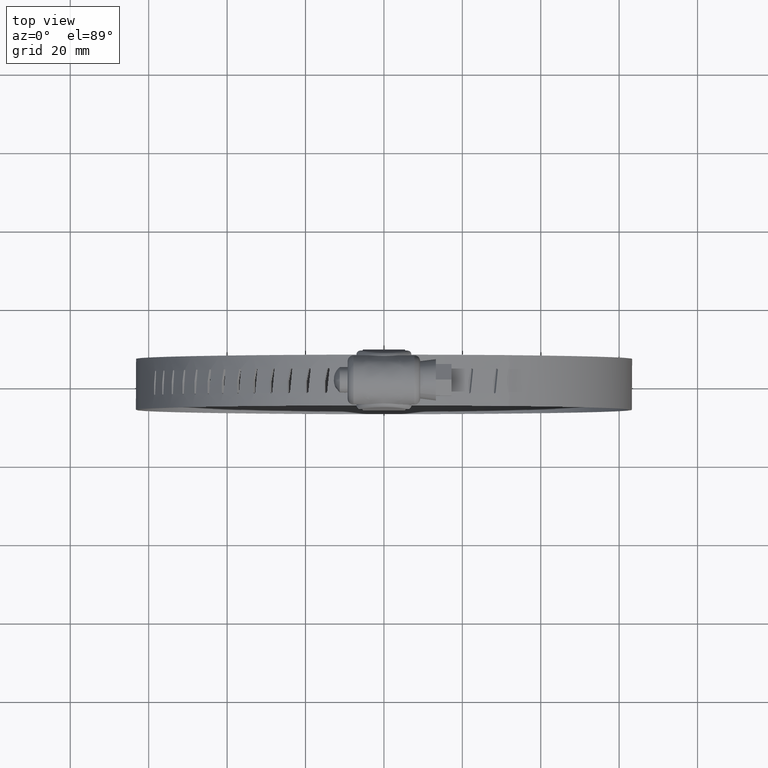
[diagram: clean part render]
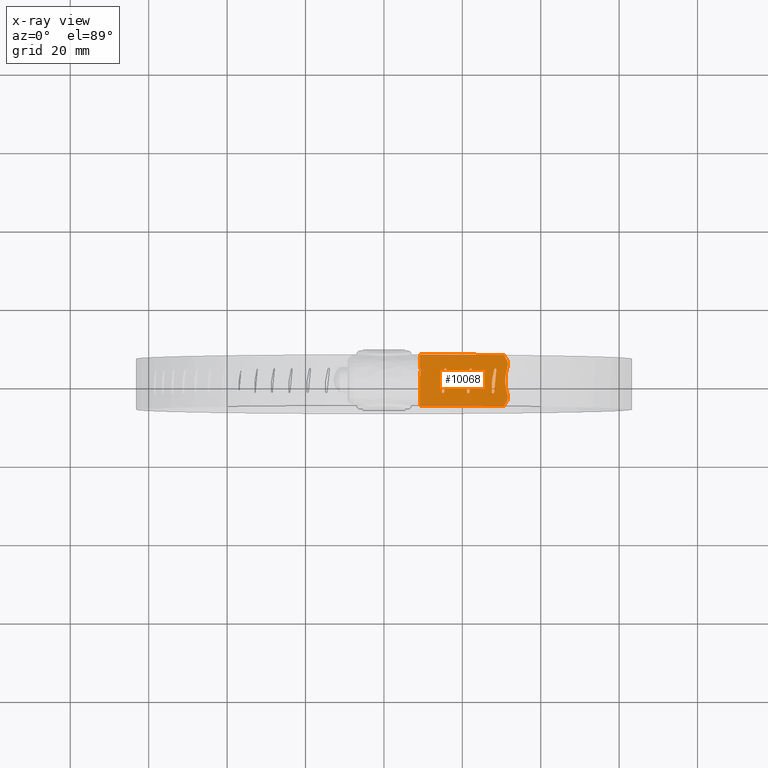
[diagram: x-ray — body ghosted, one internal face saturated and labeled with its STEP entity id]
A machine part, top view, then the same camera in x-ray: the body is ghosted and one INTERNAL B-rep face — a face not visible from any outside direction — is saturated and labeled: STEP entity #10068.
In plain terms, the highlighted face is a freeform B-spline surface patch.
Its self-contained STEP definition (entity closure, byte-faithful):
#8302=CARTESIAN_POINT('',(31.163931922086249,-2.061301204482520,4.120818992321780));
#8303=VERTEX_POINT('',#8302);
#8309=CARTESIAN_POINT('',(31.163931922086299,2.061301204482765,4.120818992321766));
#8310=VERTEX_POINT('',#8309);
#8311=CARTESIAN_POINT('',(31.163931922086299,2.061301204482765,4.120818992321766));
#8312=CARTESIAN_POINT('',(31.008029324079551,1.432037222637180,4.186796257101743));
#8313=CARTESIAN_POINT('',(30.828905619248602,0.044943627365904,4.262600587838386));
#8314=CARTESIAN_POINT('',(30.987134555952700,-1.348168519559344,4.195638827186162));
#8315=CARTESIAN_POINT('',(31.163931922086249,-2.061301204482520,4.120818992321780));
#8316=B_SPLINE_CURVE_WITH_KNOTS('',3,(#8311,#8312,#8313,#8314,#8315),.UNSPECIFIED.,.F.,.U.,(4,1,4),(0.000000036046635,1.954900952052746,4.170410556730273),.UNSPECIFIED.);
#8317=EDGE_CURVE('',#8310,#8303,#8316,.T.);
#8353=CARTESIAN_POINT('',(31.564073615469798,3.681800700683270,3.949551497983205));
#8354=VERTEX_POINT('',#8353);
#8360=CARTESIAN_POINT('',(31.362831377277740,5.226117512658850,4.035991048248590));
#8361=VERTEX_POINT('',#8360);
#8362=CARTESIAN_POINT('',(31.362831377277740,5.226117512658850,4.035991048248590));
#8363=CARTESIAN_POINT('',(31.474099704786681,5.026184522315393,3.988119469247934));
#8364=CARTESIAN_POINT('',(31.653136082775259,4.519719766581775,3.911113854809138));
#8365=CARTESIAN_POINT('',(31.636105104460519,3.972007233500124,3.918510616973161));
#8366=CARTESIAN_POINT('',(31.564073615469798,3.681800700683270,3.949551497983205));
#8367=B_SPLINE_CURVE_WITH_KNOTS('',3,(#8362,#8363,#8364,#8365,#8366),.UNSPECIFIED.,.F.,.U.,(4,1,4),(0.000000126905248,0.701292290852557,1.602902825218771),.UNSPECIFIED.);
#8368=EDGE_CURVE('',#8361,#8354,#8367,.T.);
#8404=CARTESIAN_POINT('',(31.362831377277800,-5.226117512658880,4.035991048248560));
#8405=VERTEX_POINT('',#8404);
#8411=CARTESIAN_POINT('',(31.564073615469749,-3.681800700683030,3.949551497983220));
#8412=VERTEX_POINT('',#8411);
#8413=CARTESIAN_POINT('',(31.564073615469749,-3.681800700683030,3.949551497983220));
#8414=CARTESIAN_POINT('',(31.644401401512170,-4.004279626008358,3.915048040235240));
#8415=CARTESIAN_POINT('',(31.648222669633849,-4.555408950908276,3.913406521398947));
#8416=CARTESIAN_POINT('',(31.458161836927012,-5.054715861189941,3.995043605193548));
#8417=CARTESIAN_POINT('',(31.362831377277800,-5.226117512658880,4.035991048248560));
#8418=B_SPLINE_CURVE_WITH_KNOTS('',3,(#8413,#8414,#8415,#8416,#8417),.UNSPECIFIED.,.F.,.U.,(4,1,4),(0.000000126718989,1.001773829911550,1.602870844704061),.UNSPECIFIED.);
#8419=EDGE_CURVE('',#8412,#8405,#8418,.T.);
#8531=CARTESIAN_POINT('',(9.411609338581460,2.660775000000000,10.097535966482999));
#8532=VERTEX_POINT('',#8531);
#8561=CARTESIAN_POINT('',(9.148745876024730,3.021662697174370,10.132670126067319));
#8562=VERTEX_POINT('',#8561);
#8584=CARTESIAN_POINT('',(9.411609338581460,2.660775000000000,10.097535966482999));
#8585=CARTESIAN_POINT('',(9.422434249037076,2.712285237600026,10.096124643748579));
#8586=CARTESIAN_POINT('',(9.417374097973791,2.799235378248892,10.096843804546211));
#8587=CARTESIAN_POINT('',(9.359261801410128,2.912916167511923,10.104629201315459));
#8588=CARTESIAN_POINT('',(9.271612984411263,2.991562546657789,10.116321970605849));
#8589=CARTESIAN_POINT('',(9.190299631589630,3.017640763887095,10.127144462905710));
#8590=CARTESIAN_POINT('',(9.148745876024730,3.021662697174370,10.132670126067319));
#8591=B_SPLINE_CURVE_WITH_KNOTS('',3,(#8584,#8585,#8586,#8587,#8588,#8589,#8590),.UNSPECIFIED.,.F.,.U.,(4,1,1,1,4),(0.000002045064405,0.157969267602493,0.252730537816767,0.379094784192941,0.505459030569101),.UNSPECIFIED.);
#8592=EDGE_CURVE('',#8532,#8562,#8591,.T.);
#8602=CARTESIAN_POINT('',(9.148745876024730,0.165198432926839,10.132670126067319));
#8603=VERTEX_POINT('',#8602);
#8633=CARTESIAN_POINT('',(9.148745876024730,0.165198432926839,10.132670126067319));
#8634=CARTESIAN_POINT('',(9.411609338581460,2.660775000000000,10.097535966482999));
#8635=QUASI_UNIFORM_CURVE('',1,(#8633,#8634),.UNSPECIFIED.,.F.,.U.);
#8636=EDGE_CURVE('',#8603,#8532,#8635,.T.);
#8745=CARTESIAN_POINT('',(14.806783516939740,0.026072999999997,9.189315612870979));
#8746=VERTEX_POINT('',#8745);
#8763=CARTESIAN_POINT('',(14.774884099892960,-0.282941999999991,9.195746091416460));
#8764=VERTEX_POINT('',#8763);
#8770=CARTESIAN_POINT('',(14.806783516939740,0.026072999999997,9.189315612870979));
#8771=CARTESIAN_POINT('',(14.785557089259230,-0.075409595564626,9.193596267446818));
#8772=CARTESIAN_POINT('',(14.774851891157491,-0.179176478167358,9.195754285360899));
#8773=CARTESIAN_POINT('',(14.774884099892960,-0.282941999999991,9.195746091416460));
#8774=B_SPLINE_CURVE_WITH_KNOTS('',3,(#8770,#8771,#8772,#8773),.UNSPECIFIED.,.F.,.U.,(4,4),(4.848860E-009,0.311306214405496),.UNSPECIFIED.);
#8775=EDGE_CURVE('',#8746,#8764,#8774,.T.);
#8785=CARTESIAN_POINT('',(15.369033396247600,2.723240999999915,9.073875226838000));
#8786=VERTEX_POINT('',#8785);
#8800=CARTESIAN_POINT('',(15.369033396247600,2.723240999999915,9.073875226838000));
#8801=CARTESIAN_POINT('',(14.806783516939740,0.026072999999997,9.189315612870979));
#8802=QUASI_UNIFORM_CURVE('',1,(#8800,#8801),.UNSPECIFIED.,.F.,.U.);
#8803=EDGE_CURVE('',#8786,#8746,#8802,.T.);
#8826=CARTESIAN_POINT('',(15.955195524633799,2.660775000000000,8.949283812551430));
#8827=VERTEX_POINT('',#8826);
#8856=CARTESIAN_POINT('',(15.696218977331620,3.021629151411339,9.004865540506884));
#8857=VERTEX_POINT('',#8856);
#8858=CARTESIAN_POINT('',(15.696218977331620,3.021629151411339,9.004865540506884));
#8859=CARTESIAN_POINT('',(15.655324414942839,3.026075432313208,9.013564029537815));
#8860=CARTESIAN_POINT('',(15.561237196188181,3.016100020117079,9.033541519386814));
#8861=CARTESIAN_POINT('',(15.417957125718541,2.922058834156218,9.063826118752775));
#8862=CARTESIAN_POINT('',(15.369239102211081,2.796948789995348,9.073960495247269));
#8863=CARTESIAN_POINT('',(15.369033396247600,2.723240999999915,9.073875226838000));
#8864=B_SPLINE_CURVE_WITH_KNOTS('',3,(#8858,#8859,#8860,#8861,#8862,#8863),.UNSPECIFIED.,.F.,.U.,(4,1,1,4),(0.000001239114619,0.126216638086486,0.283954800632088,0.504862729159878),.UNSPECIFIED.);
#8865=EDGE_CURVE('',#8857,#8786,#8864,.T.);
#8867=CARTESIAN_POINT('',(15.955195524633799,2.660775000000000,8.949283812551430));
#8868=CARTESIAN_POINT('',(15.965449993395319,2.712211461140320,8.947196014039459));
#8869=CARTESIAN_POINT('',(15.959425025804780,2.809659492443263,8.948642235250926));
#8870=CARTESIAN_POINT('',(15.874780531990311,2.957838802065227,8.966860692203165));
#8871=CARTESIAN_POINT('',(15.767914538710590,3.014364210960858,8.989637486541856));
#8872=CARTESIAN_POINT('',(15.696218977331620,3.021629151411339,9.004865540506884));
#8873=B_SPLINE_CURVE_WITH_KNOTS('',3,(#8867,#8868,#8869,#8870,#8871,#8872),.UNSPECIFIED.,.F.,.U.,(4,1,1,4),(0.000001957198565,0.157498613748136,0.283443843890396,0.503954010799184),.UNSPECIFIED.);
#8874=EDGE_CURVE('',#8827,#8857,#8873,.T.);
#8884=CARTESIAN_POINT('',(15.369033396247699,-2.976759000000185,9.073875226838110));
#8885=VERTEX_POINT('',#8884);
#8899=CARTESIAN_POINT('',(15.369033396247699,-2.976759000000185,9.073875226838110));
#8900=CARTESIAN_POINT('',(15.955195524633799,2.660775000000000,8.949283812551430));
#8901=QUASI_UNIFORM_CURVE('',1,(#8899,#8900),.UNSPECIFIED.,.F.,.U.);
#8902=EDGE_CURVE('',#8885,#8827,#8901,.T.);
#8925=CARTESIAN_POINT('',(14.774884099892960,-2.976759000000185,9.195746091416460));
#8926=VERTEX_POINT('',#8925);
#8955=CARTESIAN_POINT('',(15.072092886786420,-3.276758994190999,9.135337932667856));
#8956=VERTEX_POINT('',#8955);
#8957=CARTESIAN_POINT('',(15.072092886786420,-3.276758994190999,9.135337932667856));
#8958=CARTESIAN_POINT('',(15.149587082297900,-3.277438310797783,9.119443701742322));
#8959=CARTESIAN_POINT('',(15.264342102542861,-3.227997672526000,9.095813911243338));
#8960=CARTESIAN_POINT('',(15.352574469837890,-3.094840509698447,9.077469603210441));
#8961=CARTESIAN_POINT('',(15.368662473307401,-3.016174832164888,9.074024194731553));
#8962=CARTESIAN_POINT('',(15.369033396247699,-2.976759000000185,9.073875226838110));
#8963=B_SPLINE_CURVE_WITH_KNOTS('',3,(#8957,#8958,#8959,#8960,#8961,#8962),.UNSPECIFIED.,.F.,.U.,(4,1,1,4),(0.000001300095499,0.236639572838864,0.354958744204438,0.473277914022967),.UNSPECIFIED.);
#8964=EDGE_CURVE('',#8956,#8885,#8963,.T.);
#8966=CARTESIAN_POINT('',(14.774884099892960,-2.976759000000185,9.195746091416460));
#8967=CARTESIAN_POINT('',(14.775283947287379,-3.016170762966247,9.195736952721292));
#8968=CARTESIAN_POINT('',(14.793428525369199,-3.104707514911971,9.192178887119464));
#8969=CARTESIAN_POINT('',(14.888981146232510,-3.234635588941362,9.172819570039520));
#8970=CARTESIAN_POINT('',(15.004413858412430,-3.277134654028832,9.149220819710685));
#8971=CARTESIAN_POINT('',(15.072092886786420,-3.276758994190999,9.135337932667856));
#8972=B_SPLINE_CURVE_WITH_KNOTS('',3,(#8966,#8967,#8968,#8969,#8970,#8971),.UNSPECIFIED.,.F.,.U.,(4,1,1,4),(0.000001216995153,0.118333150924567,0.266228864153110,0.473328887355686),.UNSPECIFIED.);
#8973=EDGE_CURVE('',#8926,#8956,#8972,.T.);
#8990=CARTESIAN_POINT('',(14.774884099892960,-0.282941999999991,9.195746091416460));
#8991=CARTESIAN_POINT('',(14.774884099892960,-2.976759000000185,9.195746091416460));
#8992=QUASI_UNIFORM_CURVE('',1,(#8990,#8991),.UNSPECIFIED.,.F.,.U.);
#8993=EDGE_CURVE('',#8764,#8926,#8992,.T.);
#9012=CARTESIAN_POINT('',(21.262480033882451,0.026072999999997,7.620562711858280));
#9013=VERTEX_POINT('',#9012);
#9030=CARTESIAN_POINT('',(21.231183481624299,-0.282941999999991,7.629476166800210));
#9031=VERTEX_POINT('',#9030);
#9037=CARTESIAN_POINT('',(21.262480033882451,0.026072999999997,7.620562711858280));
#9038=CARTESIAN_POINT('',(21.241653229264450,-0.075404654789313,7.626496052116436));
#9039=CARTESIAN_POINT('',(21.231152409012552,-0.179178620661426,7.629486750254985));
#9040=CARTESIAN_POINT('',(21.231183481624299,-0.282941999999991,7.629476166800210));
#9041=B_SPLINE_CURVE_WITH_KNOTS('',3,(#9037,#9038,#9039,#9040),.UNSPECIFIED.,.F.,.U.,(4,4),(4.848866E-009,0.311306214405497),.UNSPECIFIED.);
#9042=EDGE_CURVE('',#9013,#9031,#9041,.T.);
#9052=CARTESIAN_POINT('',(21.813939336155350,2.723240999999915,7.461364572905690));
#9053=VERTEX_POINT('',#9052);
#9067=CARTESIAN_POINT('',(21.813939336155350,2.723240999999915,7.461364572905690));
#9068=CARTESIAN_POINT('',(21.262480033882451,0.026072999999997,7.620562711858280));
#9069=QUASI_UNIFORM_CURVE('',1,(#9067,#9068),.UNSPECIFIED.,.F.,.U.);
#9070=EDGE_CURVE('',#9053,#9013,#9069,.T.);
#9093=CARTESIAN_POINT('',(22.388519192620901,2.660775000000000,7.291167481825750));
#9094=VERTEX_POINT('',#9093);
#9123=CARTESIAN_POINT('',(22.134701875699061,3.021629151411338,7.366896935579584));
#9124=VERTEX_POINT('',#9123);
#9125=CARTESIAN_POINT('',(22.134701875699061,3.021629151411338,7.366896935579584));
#9126=CARTESIAN_POINT('',(22.094615820438872,3.026066233073627,7.378777153731991));
#9127=CARTESIAN_POINT('',(22.002372354383748,3.016133458877070,7.406079192165562));
#9128=CARTESIAN_POINT('',(21.861980024868672,2.922001834660955,7.447491179228851));
#9129=CARTESIAN_POINT('',(21.814109977079539,2.796983513736848,7.461445679762648));
#9130=CARTESIAN_POINT('',(21.813939336155350,2.723240999999915,7.461364572905690));
#9131=B_SPLINE_CURVE_WITH_KNOTS('',3,(#9125,#9126,#9127,#9128,#9129,#9130),.UNSPECIFIED.,.F.,.U.,(4,1,1,4),(0.000001239114845,0.126216638086492,0.283954800631884,0.504862729159416),.UNSPECIFIED.);
#9132=EDGE_CURVE('',#9124,#9053,#9131,.T.);
#9134=CARTESIAN_POINT('',(22.388519192620901,2.660775000000000,7.291167481825750));
#9135=CARTESIAN_POINT('',(22.400743767591401,2.722528931949328,7.287658953087474));
#9136=CARTESIAN_POINT('',(22.389575751556212,2.820841188010496,7.291135676227417));
#9137=CARTESIAN_POINT('',(22.300155285124649,2.962979899979615,7.317841678861909));
#9138=CARTESIAN_POINT('',(22.205008297069600,3.014361728489003,7.346082765636499));
#9139=CARTESIAN_POINT('',(22.134701875699061,3.021629151411338,7.366896935579584));
#9140=B_SPLINE_CURVE_WITH_KNOTS('',3,(#9134,#9135,#9136,#9137,#9138,#9139),.UNSPECIFIED.,.F.,.U.,(4,1,1,4),(0.000001957198589,0.189011976087005,0.283443843890526,0.503954010799395),.UNSPECIFIED.);
#9141=EDGE_CURVE('',#9094,#9124,#9140,.T.);
#9151=CARTESIAN_POINT('',(21.813939336155400,-2.976759000000185,7.461364572905800));
#9152=VERTEX_POINT('',#9151);
#9166=CARTESIAN_POINT('',(21.813939336155400,-2.976759000000185,7.461364572905800));
#9167=CARTESIAN_POINT('',(22.388519192620901,2.660775000000000,7.291167481825750));
#9168=QUASI_UNIFORM_CURVE('',1,(#9166,#9167),.UNSPECIFIED.,.F.,.U.);
#9169=EDGE_CURVE('',#9152,#9094,#9168,.T.);
#9192=CARTESIAN_POINT('',(21.231183481624299,-2.976759000000185,7.629476166800210));
#9193=VERTEX_POINT('',#9192);
#9222=CARTESIAN_POINT('',(21.522736503505939,-3.276758994190999,7.545935493582783));
#9223=VERTEX_POINT('',#9222);
#9224=CARTESIAN_POINT('',(21.522736503505939,-3.276758994190999,7.545935493582783));
#9225=CARTESIAN_POINT('',(21.589108506380182,-3.277125261801735,7.526789383667051));
#9226=CARTESIAN_POINT('',(21.702277745000949,-3.234610631991371,7.494062502303380));
#9227=CARTESIAN_POINT('',(21.795861596729210,-3.104696466313358,7.466820783547848));
#9228=CARTESIAN_POINT('',(21.813581819810629,-3.016165739004914,7.461542000761856));
#9229=CARTESIAN_POINT('',(21.813939336155400,-2.976759000000185,7.461364572905800));
#9230=B_SPLINE_CURVE_WITH_KNOTS('',3,(#9224,#9225,#9226,#9227,#9228,#9229),.UNSPECIFIED.,.F.,.U.,(4,1,1,4),(0.000001300095544,0.207078979428101,0.354958744204647,0.473277914023248),.UNSPECIFIED.);
#9231=EDGE_CURVE('',#9223,#9152,#9230,.T.);
#9233=CARTESIAN_POINT('',(21.231183481624299,-2.976759000000185,7.629476166800210));
#9234=CARTESIAN_POINT('',(21.231577617093620,-3.045851950543270,7.629492727185246));
#9235=CARTESIAN_POINT('',(21.273714084862611,-3.163182229409300,7.617558537635408));
#9236=CARTESIAN_POINT('',(21.399595205998651,-3.259285273261522,7.581425946949637));
#9237=CARTESIAN_POINT('',(21.484863062781852,-3.276792784680363,7.556861162797577));
#9238=CARTESIAN_POINT('',(21.522736503505939,-3.276758994190999,7.545935493582783));
#9239=B_SPLINE_CURVE_WITH_KNOTS('',3,(#9233,#9234,#9235,#9236,#9237,#9238),.UNSPECIFIED.,.F.,.U.,(4,1,1,4),(0.000001216995032,0.207101290976576,0.354996986104962,0.473328887355432),.UNSPECIFIED.);
#9240=EDGE_CURVE('',#9193,#9223,#9239,.T.);
#9257=CARTESIAN_POINT('',(21.231183481624299,-0.282941999999991,7.629476166800210));
#9258=CARTESIAN_POINT('',(21.231183481624299,-2.976759000000185,7.629476166800210));
#9259=QUASI_UNIFORM_CURVE('',1,(#9257,#9258),.UNSPECIFIED.,.F.,.U.);
#9260=EDGE_CURVE('',#9031,#9193,#9259,.T.);
#9270=CARTESIAN_POINT('',(30.653312246935752,-6.500000000000000,4.335849637519985));
#9271=VERTEX_POINT('',#9270);
#9272=CARTESIAN_POINT('',(30.653312246935752,-6.500000000000000,4.335849637519985));
#9273=CARTESIAN_POINT('',(31.362831377277800,-5.226117512658880,4.035991048248560));
#9274=QUASI_UNIFORM_CURVE('',1,(#9272,#9273),.UNSPECIFIED.,.F.,.U.);
#9275=EDGE_CURVE('',#9271,#8405,#9274,.T.);
#9306=CARTESIAN_POINT('',(30.653312246935752,6.500000000000000,4.335849637519985));
#9307=VERTEX_POINT('',#9306);
#9308=CARTESIAN_POINT('',(31.362831377277740,5.226117512658850,4.035991048248590));
#9309=CARTESIAN_POINT('',(30.653312246935752,6.500000000000000,4.335849637519985));
#9310=QUASI_UNIFORM_CURVE('',1,(#9308,#9309),.UNSPECIFIED.,.F.,.U.);
#9311=EDGE_CURVE('',#8361,#9307,#9310,.T.);
#9326=CARTESIAN_POINT('',(31.564073615469749,-3.681800700683030,3.949551497983220));
#9327=CARTESIAN_POINT('',(31.163931922086249,-2.061301204482520,4.120818992321780));
#9328=QUASI_UNIFORM_CURVE('',1,(#9326,#9327),.UNSPECIFIED.,.F.,.U.);
#9329=EDGE_CURVE('',#8412,#8303,#9328,.T.);
#9352=CARTESIAN_POINT('',(31.163931922086299,2.061301204482765,4.120818992321766));
#9353=CARTESIAN_POINT('',(31.564073615469798,3.681800700683270,3.949551497983205));
#9354=QUASI_UNIFORM_CURVE('',1,(#9352,#9353),.UNSPECIFIED.,.F.,.U.);
#9355=EDGE_CURVE('',#8310,#8354,#9354,.T.);
#9375=CARTESIAN_POINT('',(27.575192858909350,0.026072999999997,5.550137641481660));
#9376=VERTEX_POINT('',#9375);
#9393=CARTESIAN_POINT('',(27.544692125091750,-0.282941999999991,5.561479118406350));
#9394=VERTEX_POINT('',#9393);
#9400=CARTESIAN_POINT('',(27.575192858909350,0.026072999999997,5.550137641481660));
#9401=CARTESIAN_POINT('',(27.554897405685459,-0.075409595564636,5.557686138955258));
#9402=CARTESIAN_POINT('',(27.544661594714569,-0.179176478167361,5.561492250026007));
#9403=CARTESIAN_POINT('',(27.544692125091750,-0.282941999999991,5.561479118406350));
#9404=B_SPLINE_CURVE_WITH_KNOTS('',3,(#9400,#9401,#9402,#9403),.UNSPECIFIED.,.F.,.U.,(4,4),(4.848864E-009,0.311306214405490),.UNSPECIFIED.);
#9405=EDGE_CURVE('',#9376,#9394,#9404,.T.);
#9415=CARTESIAN_POINT('',(28.112461654169799,2.723240999999915,5.348163259074950));
#9416=VERTEX_POINT('',#9415);
#9430=CARTESIAN_POINT('',(28.112461654169799,2.723240999999915,5.348163259074950));
#9431=CARTESIAN_POINT('',(27.575192858909350,0.026072999999997,5.550137641481660));
#9432=QUASI_UNIFORM_CURVE('',1,(#9430,#9431),.UNSPECIFIED.,.F.,.U.);
#9433=EDGE_CURVE('',#9416,#9376,#9432,.T.);
#9456=CARTESIAN_POINT('',(28.671916762832598,2.660775000000000,5.133409812864609));
#9457=VERTEX_POINT('',#9456);
#9486=CARTESIAN_POINT('',(28.424823544453108,3.021629151411339,5.228820095151646));
#9487=VERTEX_POINT('',#9486);
#9488=CARTESIAN_POINT('',(28.424823544453108,3.021629151411339,5.228820095151646));
#9489=CARTESIAN_POINT('',(28.366217537470821,3.028480860566506,5.251326722589676));
#9490=CARTESIAN_POINT('',(28.275669193873060,3.007683295051538,5.286042713314026));
#9491=CARTESIAN_POINT('',(28.151504958896211,2.900992474682082,5.333503620277950));
#9492=CARTESIAN_POINT('',(28.112638155835430,2.797044829207519,5.348230831089024));
#9493=CARTESIAN_POINT('',(28.112461654169799,2.723240999999915,5.348163259074950));
#9494=B_SPLINE_CURVE_WITH_KNOTS('',3,(#9488,#9489,#9490,#9491,#9492,#9493),.UNSPECIFIED.,.F.,.U.,(4,1,1,4),(0.000001239114752,0.189352695340417,0.283954800631935,0.504862729159522),.UNSPECIFIED.);
#9495=EDGE_CURVE('',#9487,#9416,#9494,.T.);
#9497=CARTESIAN_POINT('',(28.671916762832598,2.660775000000000,5.133409812864609));
#9498=CARTESIAN_POINT('',(28.681713277891340,2.712203988879148,5.129745508871994));
#9499=CARTESIAN_POINT('',(28.676002378676909,2.809664608588071,5.132111224353920));
#9500=CARTESIAN_POINT('',(28.595249200959671,2.957872859672777,5.163347054099747));
#9501=CARTESIAN_POINT('',(28.493236503316680,3.014318591978693,5.202570579939630));
#9502=CARTESIAN_POINT('',(28.424823544453108,3.021629151411339,5.228820095151646));
#9503=B_SPLINE_CURVE_WITH_KNOTS('',3,(#9497,#9498,#9499,#9500,#9501,#9502),.UNSPECIFIED.,.F.,.U.,(4,1,1,4),(0.000001957198571,0.157498613748197,0.283443843890512,0.503954010799378),.UNSPECIFIED.);
#9504=EDGE_CURVE('',#9457,#9487,#9503,.T.);
#9514=CARTESIAN_POINT('',(28.112461654169898,-2.976759000000185,5.348163259075061));
#9515=VERTEX_POINT('',#9514);
#9529=CARTESIAN_POINT('',(28.112461654169898,-2.976759000000185,5.348163259075061));
#9530=CARTESIAN_POINT('',(28.671916762832598,2.660775000000000,5.133409812864609));
#9531=QUASI_UNIFORM_CURVE('',1,(#9529,#9530),.UNSPECIFIED.,.F.,.U.);
#9532=EDGE_CURVE('',#9515,#9457,#9531,.T.);
#9555=CARTESIAN_POINT('',(27.544692125091750,-2.976759000000185,5.561479118406350));
#9556=VERTEX_POINT('',#9555);
#9585=CARTESIAN_POINT('',(27.828791860630400,-3.276758994190999,5.455320986750770));
#9586=VERTEX_POINT('',#9585);
#9587=CARTESIAN_POINT('',(27.828791860630400,-3.276758994190999,5.455320986750770));
#9588=CARTESIAN_POINT('',(27.893457074299661,-3.277125261801789,5.431026410575049));
#9589=CARTESIAN_POINT('',(28.003709728408371,-3.234610631991466,5.389521259138189));
#9590=CARTESIAN_POINT('',(28.094867731734251,-3.104696466313442,5.355021013128787));
#9591=CARTESIAN_POINT('',(28.112119160757910,-3.016165739004939,5.348368190389371));
#9592=CARTESIAN_POINT('',(28.112461654169898,-2.976759000000185,5.348163259075061));
#9593=B_SPLINE_CURVE_WITH_KNOTS('',3,(#9587,#9588,#9589,#9590,#9591,#9592),.UNSPECIFIED.,.F.,.U.,(4,1,1,4),(0.000001300095661,0.207078979428272,0.354958744204868,0.473277914023484),.UNSPECIFIED.);
#9594=EDGE_CURVE('',#9586,#9515,#9593,.T.);
#9596=CARTESIAN_POINT('',(27.544692125091750,-2.976759000000185,5.561479118406350));
#9597=CARTESIAN_POINT('',(27.545085311785581,-3.045849892752027,5.561465088391176));
#9598=CARTESIAN_POINT('',(27.586161462498040,-3.163188939508689,5.546259491079088));
#9599=CARTESIAN_POINT('',(27.708807032987071,-3.259276385929684,5.500366458939737));
#9600=CARTESIAN_POINT('',(27.791903103649190,-3.276800904155119,5.469180481892630));
#9601=CARTESIAN_POINT('',(27.828791860630400,-3.276758994190999,5.455320986750770));
#9602=B_SPLINE_CURVE_WITH_KNOTS('',3,(#9596,#9597,#9598,#9599,#9600,#9601),.UNSPECIFIED.,.F.,.U.,(4,1,1,4),(0.000001216995194,0.207101290976484,0.354996986104728,0.473328887355105),.UNSPECIFIED.);
#9603=EDGE_CURVE('',#9556,#9586,#9602,.T.);
#9620=CARTESIAN_POINT('',(27.544692125091750,-0.282941999999991,5.561479118406350));
#9621=CARTESIAN_POINT('',(27.544692125091750,-2.976759000000185,5.561479118406350));
#9622=QUASI_UNIFORM_CURVE('',1,(#9620,#9621),.UNSPECIFIED.,.F.,.U.);
#9623=EDGE_CURVE('',#9394,#9556,#9622,.T.);
#9745=CARTESIAN_POINT('',(9.148745876024730,6.500000000000000,10.132670126067319));
#9746=VERTEX_POINT('',#9745);
#9754=CARTESIAN_POINT('',(9.148745876024730,6.500000000000000,10.132670126067319));
#9755=CARTESIAN_POINT('',(9.148745876024730,3.021662697174370,10.132670126067319));
#9756=QUASI_UNIFORM_CURVE('',1,(#9754,#9755),.UNSPECIFIED.,.F.,.U.);
#9757=EDGE_CURVE('',#9746,#8562,#9756,.T.);
#9863=CARTESIAN_POINT('',(9.148745876024730,-6.500000000000000,10.132670126067319));
#9864=VERTEX_POINT('',#9863);
#9872=CARTESIAN_POINT('',(30.653312246935752,-6.500000000000000,4.335849637519985));
#9873=CARTESIAN_POINT('',(27.432352662499341,-6.499999999999996,5.679962079849739));
#9874=CARTESIAN_POINT('',(20.383220465608460,-6.499999999999996,8.121292176493958));
#9875=CARTESIAN_POINT('',(13.070236897118180,-6.500000000000010,9.614984553882808));
#9876=CARTESIAN_POINT('',(9.148745876024730,-6.500000000000000,10.132670126067319));
#9877=B_SPLINE_CURVE_WITH_KNOTS('',3,(#9872,#9873,#9874,#9875,#9876),.UNSPECIFIED.,.F.,.U.,(4,1,4),(2.574847E-009,10.470475704856030,22.336993923316928),.UNSPECIFIED.);
#9878=EDGE_CURVE('',#9271,#9864,#9877,.T.);
#9925=CARTESIAN_POINT('',(30.653312246935752,6.500000000000000,4.335849637519985));
#9926=CARTESIAN_POINT('',(27.432352662499341,6.499999999999996,5.679962079849739));
#9927=CARTESIAN_POINT('',(20.383220465608460,6.499999999999996,8.121292176493958));
#9928=CARTESIAN_POINT('',(13.070236897118180,6.500000000000010,9.614984553882808));
#9929=CARTESIAN_POINT('',(9.148745876024730,6.500000000000000,10.132670126067319));
#9930=B_SPLINE_CURVE_WITH_KNOTS('',3,(#9925,#9926,#9927,#9928,#9929),.UNSPECIFIED.,.F.,.U.,(4,1,4),(2.574847E-009,10.470475704856030,22.336993923316928),.UNSPECIFIED.);
#9931=EDGE_CURVE('',#9307,#9746,#9930,.T.);
#10005=CARTESIAN_POINT('',(32.690073873375418,-6.824999999999999,3.454437143672131));
#10006=CARTESIAN_POINT('',(32.690073873375418,6.833125000000003,3.454437143672131));
#10007=CARTESIAN_POINT('',(20.863347912909489,-6.825000000000000,8.757695304400940));
#10008=CARTESIAN_POINT('',(20.863347912909489,6.833125000000002,8.757695304400940));
#10009=CARTESIAN_POINT('',(7.991421754359146,-6.825000000000000,10.277402852623029));
#10010=CARTESIAN_POINT('',(7.991421754359146,6.833125000000002,10.277402852623029));
#10018=(BOUNDED_SURFACE()B_SPLINE_SURFACE(1,2,((#10005,#10007,#10009),(#10006,#10008,#10010)),.UNSPECIFIED.,.F.,.F.,.U.)B_SPLINE_SURFACE_WITH_KNOTS((2,2),(3,3),(0.0,13.658125000000000),(0.0,25.772309335231629),.UNSPECIFIED.)GEOMETRIC_REPRESENTATION_ITEM()RATIONAL_B_SPLINE_SURFACE(((0.998595321233075,0.985220079589454,0.994834211813526),(0.998595321233075,0.985220079589454,0.994834211813526)))REPRESENTATION_ITEM('')SURFACE());
#10019=ORIENTED_EDGE('',*,*,#9329,.F.);
#10020=ORIENTED_EDGE('',*,*,#8419,.T.);
#10021=ORIENTED_EDGE('',*,*,#9275,.F.);
#10022=ORIENTED_EDGE('',*,*,#9878,.T.);
#10023=CARTESIAN_POINT('',(9.148745876024730,0.165198432926839,10.132670126067319));
#10024=CARTESIAN_POINT('',(9.148745876024730,-6.500000000000000,10.132670126067319));
#10025=QUASI_UNIFORM_CURVE('',1,(#10023,#10024),.UNSPECIFIED.,.F.,.U.);
#10026=EDGE_CURVE('',#8603,#9864,#10025,.T.);
#10027=ORIENTED_EDGE('',*,*,#10026,.F.);
#10028=ORIENTED_EDGE('',*,*,#8636,.T.);
#10029=ORIENTED_EDGE('',*,*,#8592,.T.);
#10030=ORIENTED_EDGE('',*,*,#9757,.F.);
#10031=ORIENTED_EDGE('',*,*,#9931,.F.);
#10032=ORIENTED_EDGE('',*,*,#9311,.F.);
#10033=ORIENTED_EDGE('',*,*,#8368,.T.);
#10034=ORIENTED_EDGE('',*,*,#9355,.F.);
#10035=ORIENTED_EDGE('',*,*,#8317,.T.);
#10036=EDGE_LOOP('',(#10019,#10020,#10021,#10022,#10027,#10028,#10029,#10030,#10031,#10032,#10033,#10034,#10035));
#10037=FACE_OUTER_BOUND('',#10036,.T.);
#10038=ORIENTED_EDGE('',*,*,#9042,.T.);
#10039=ORIENTED_EDGE('',*,*,#9260,.T.);
#10040=ORIENTED_EDGE('',*,*,#9240,.T.);
#10041=ORIENTED_EDGE('',*,*,#9231,.T.);
#10042=ORIENTED_EDGE('',*,*,#9169,.T.);
#10043=ORIENTED_EDGE('',*,*,#9141,.T.);
#10044=ORIENTED_EDGE('',*,*,#9132,.T.);
#10045=ORIENTED_EDGE('',*,*,#9070,.T.);
#10046=EDGE_LOOP('',(#10038,#10039,#10040,#10041,#10042,#10043,#10044,#10045));
#10047=FACE_BOUND('',#10046,.T.);
#10048=ORIENTED_EDGE('',*,*,#9405,.T.);
#10049=ORIENTED_EDGE('',*,*,#9623,.T.);
#10050=ORIENTED_EDGE('',*,*,#9603,.T.);
#10051=ORIENTED_EDGE('',*,*,#9594,.T.);
#10052=ORIENTED_EDGE('',*,*,#9532,.T.);
#10053=ORIENTED_EDGE('',*,*,#9504,.T.);
#10054=ORIENTED_EDGE('',*,*,#9495,.T.);
#10055=ORIENTED_EDGE('',*,*,#9433,.T.);
#10056=EDGE_LOOP('',(#10048,#10049,#10050,#10051,#10052,#10053,#10054,#10055));
#10057=FACE_BOUND('',#10056,.T.);
#10058=ORIENTED_EDGE('',*,*,#8775,.T.);
#10059=ORIENTED_EDGE('',*,*,#8993,.T.);
#10060=ORIENTED_EDGE('',*,*,#8973,.T.);
#10061=ORIENTED_EDGE('',*,*,#8964,.T.);
#10062=ORIENTED_EDGE('',*,*,#8902,.T.);
#10063=ORIENTED_EDGE('',*,*,#8874,.T.);
#10064=ORIENTED_EDGE('',*,*,#8865,.T.);
#10065=ORIENTED_EDGE('',*,*,#8803,.T.);
#10066=EDGE_LOOP('',(#10058,#10059,#10060,#10061,#10062,#10063,#10064,#10065));
#10067=FACE_BOUND('',#10066,.T.);
#10068=ADVANCED_FACE('',(#10037,#10047,#10057,#10067),#10018,.F.);